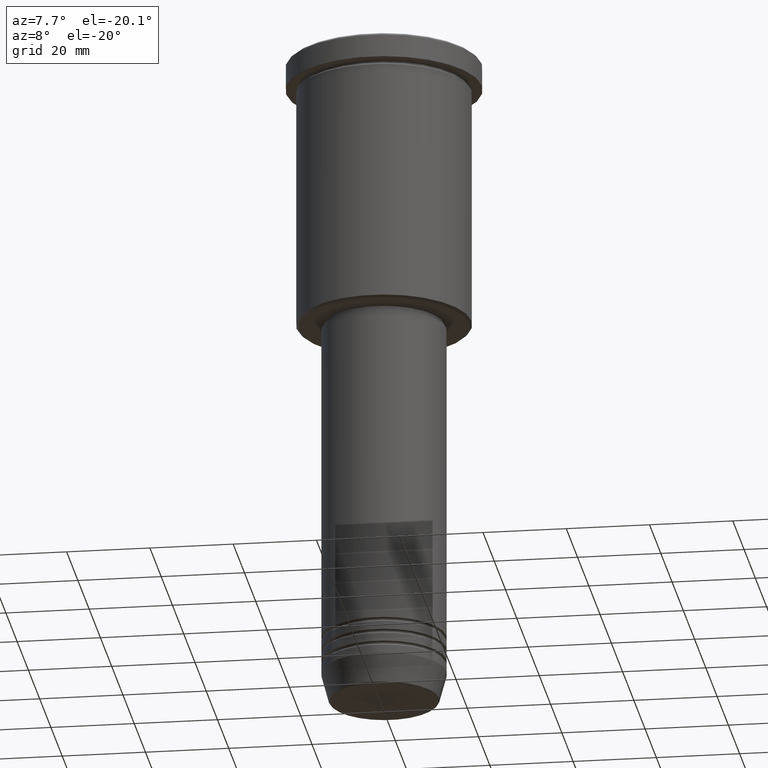
[diagram: clean part render]
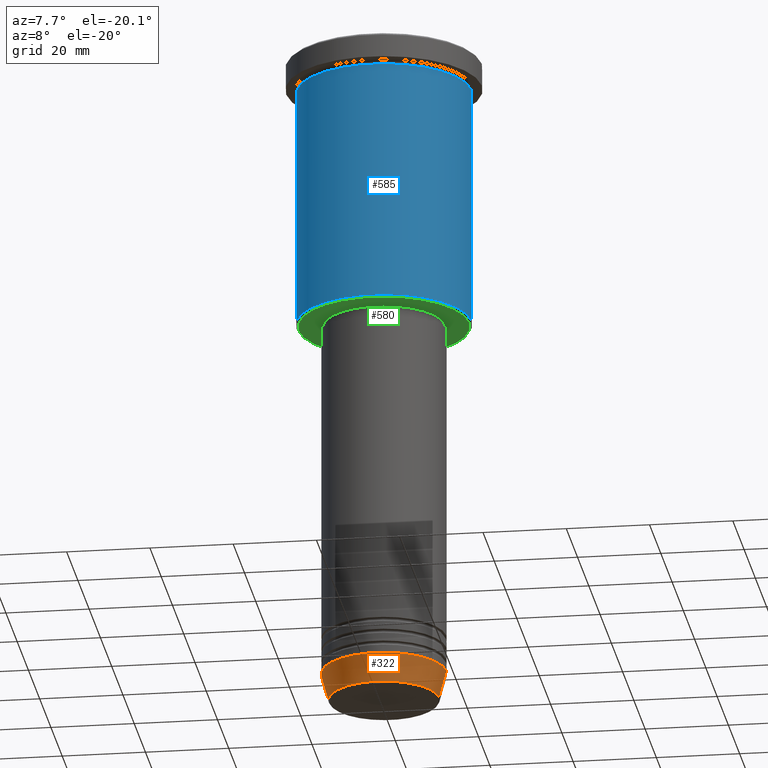
[diagram: same view with three faces highlighted in distinct colors, each labeled with its STEP entity id]
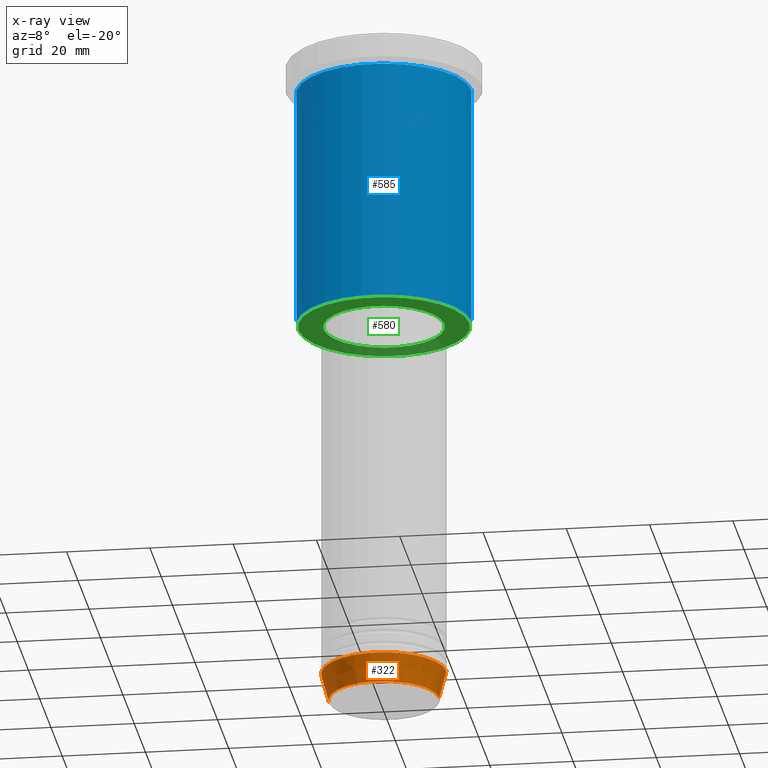
[diagram: x-ray of the same camera — body ghosted, the three highlighted faces saturated]
A machine part, auxiliary view with three faces highlighted in distinct colors.
The next image is the same camera in x-ray (body ghosted, the three faces saturated) — at least one of them is partly hidden behind the body in this view.
Their STEP definitions:

[orange] entity #322 — the highlighted conical surface has half-angle 15 deg.
#81 = DIRECTION ( 'NONE',  ( 1.000000000000000000, 0.000000000000000000, 0.000000000000000000 ) ) ;
#106 = CARTESIAN_POINT ( 'NONE',  ( 13.22365507213719305, 0.000000000000000000, -160.6294095225512137 ) ) ;
#151 = DIRECTION ( 'NONE',  ( 1.000000000000000000, 0.000000000000000000, 0.000000000000000000 ) ) ;
#196 = DIRECTION ( 'NONE',  ( -0.2588190451025213501, 3.169619151431772337E-17, 0.9659258262890680902 ) ) ;
#220 = CARTESIAN_POINT ( 'NONE',  ( -13.22365507213719305, 1.728200442216588583E-15, -160.6294095225512137 ) ) ;
#221 = EDGE_CURVE ( 'NONE', #563, #750, #778, .T. ) ;
#238 = ORIENTED_EDGE ( 'NONE', *, *, #372, .T. ) ;
#243 = EDGE_LOOP ( 'NONE', ( #439, #238, #813, #896 ) ) ;
#317 = CARTESIAN_POINT ( 'NONE',  ( -15.00000000000000000, 1.836970198721029589E-15, -154.0000000000000000 ) ) ;
#322 = ADVANCED_FACE ( 'NONE', ( #618 ), #770, .T. ) ;
#372 = EDGE_CURVE ( 'NONE', #1168, #563, #985, .T. ) ;
#377 = AXIS2_PLACEMENT_3D ( 'NONE', #819, #539, #151 ) ;
#428 = CARTESIAN_POINT ( 'NONE',  ( 15.00000000000000000, 0.000000000000000000, -154.0000000000000000 ) ) ;
#439 = ORIENTED_EDGE ( 'NONE', *, *, #881, .F. ) ;
#474 = LINE ( 'NONE', #853, #1032 ) ;
#484 = DIRECTION ( 'NONE',  ( -0.000000000000000000, -0.000000000000000000, 1.000000000000000000 ) ) ;
#495 = DIRECTION ( 'NONE',  ( 1.000000000000000000, 0.000000000000000000, 0.000000000000000000 ) ) ;
#509 = AXIS2_PLACEMENT_3D ( 'NONE', #1154, #717, #81 ) ;
#539 = DIRECTION ( 'NONE',  ( -0.000000000000000000, -0.000000000000000000, 1.000000000000000000 ) ) ;
#563 = VERTEX_POINT ( 'NONE', #106 ) ;
#577 = VECTOR ( 'NONE', #1029, 1000.000000000000000 ) ;
#618 = FACE_OUTER_BOUND ( 'NONE', #243, .T. ) ;
#692 = CIRCLE ( 'NONE', #1124, 15.00000000000000000 ) ;
#717 = DIRECTION ( 'NONE',  ( -0.000000000000000000, -0.000000000000000000, 1.000000000000000000 ) ) ;
#750 = VERTEX_POINT ( 'NONE', #428 ) ;
#770 = CONICAL_SURFACE ( 'NONE', #377, 15.00000000000000000, 0.2617993877991500740 ) ;
#778 = LINE ( 'NONE', #1145, #577 ) ;
#813 = ORIENTED_EDGE ( 'NONE', *, *, #221, .T. ) ;
#819 = CARTESIAN_POINT ( 'NONE',  ( 0.000000000000000000, 0.000000000000000000, -154.0000000000000000 ) ) ;
#853 = CARTESIAN_POINT ( 'NONE',  ( -15.00000000000000000, 1.836970198721029589E-15, -154.0000000000000000 ) ) ;
#881 = EDGE_CURVE ( 'NONE', #1168, #1134, #474, .T. ) ;
#896 = ORIENTED_EDGE ( 'NONE', *, *, #1040, .F. ) ;
#960 = CARTESIAN_POINT ( 'NONE',  ( 0.000000000000000000, 0.000000000000000000, -154.0000000000000000 ) ) ;
#985 = CIRCLE ( 'NONE', #509, 13.22365507213719305 ) ;
#1029 = DIRECTION ( 'NONE',  ( 0.2588190451025213501, 0.000000000000000000, 0.9659258262890680902 ) ) ;
#1032 = VECTOR ( 'NONE', #196, 1000.000000000000000 ) ;
#1040 = EDGE_CURVE ( 'NONE', #1134, #750, #692, .T. ) ;
#1124 = AXIS2_PLACEMENT_3D ( 'NONE', #960, #484, #495 ) ;
#1134 = VERTEX_POINT ( 'NONE', #317 ) ;
#1145 = CARTESIAN_POINT ( 'NONE',  ( 15.00000000000000000, 0.000000000000000000, -154.0000000000000000 ) ) ;
#1154 = CARTESIAN_POINT ( 'NONE',  ( 0.000000000000000000, 0.000000000000000000, -160.6294095225512137 ) ) ;
#1168 = VERTEX_POINT ( 'NONE', #220 ) ;

[blue] entity #585 — the highlighted cylindrical surface (partial cylindrical patch) has radius 21 mm, axis along (-0, -0, 1).
#13 = AXIS2_PLACEMENT_3D ( 'NONE', #300, #672, #854 ) ;
#28 = VERTEX_POINT ( 'NONE', #149 ) ;
#44 = DIRECTION ( 'NONE',  ( -0.000000000000000000, -0.000000000000000000, 1.000000000000000000 ) ) ;
#68 = ORIENTED_EDGE ( 'NONE', *, *, #88, .T. ) ;
#71 = LINE ( 'NONE', #737, #252 ) ;
#88 = EDGE_CURVE ( 'NONE', #514, #406, #559, .T. ) ;
#103 = ORIENTED_EDGE ( 'NONE', *, *, #339, .F. ) ;
#149 = CARTESIAN_POINT ( 'NONE',  ( -21.00000000000000000, 2.571758278209441661E-15, -6.999999999999994671 ) ) ;
#187 = CARTESIAN_POINT ( 'NONE',  ( -21.00000000000000000, 2.571758278209441661E-15, -65.49999999999998579 ) ) ;
#203 = ORIENTED_EDGE ( 'NONE', *, *, #603, .T. ) ;
#218 = LINE ( 'NONE', #969, #788 ) ;
#233 = AXIS2_PLACEMENT_3D ( 'NONE', #913, #443, #531 ) ;
#252 = VECTOR ( 'NONE', #1082, 1000.000000000000000 ) ;
#300 = CARTESIAN_POINT ( 'NONE',  ( 0.000000000000000000, 0.000000000000000000, -65.49999999999998579 ) ) ;
#339 = EDGE_CURVE ( 'NONE', #28, #494, #451, .T. ) ;
#392 = AXIS2_PLACEMENT_3D ( 'NONE', #874, #44, #776 ) ;
#406 = VERTEX_POINT ( 'NONE', #650 ) ;
#443 = DIRECTION ( 'NONE',  ( -0.000000000000000000, -0.000000000000000000, 1.000000000000000000 ) ) ;
#451 = CIRCLE ( 'NONE', #233, 21.00000000000000000 ) ;
#486 = CARTESIAN_POINT ( 'NONE',  ( 21.00000000000000000, 0.000000000000000000, -6.999999999999994671 ) ) ;
#494 = VERTEX_POINT ( 'NONE', #486 ) ;
#514 = VERTEX_POINT ( 'NONE', #187 ) ;
#531 = DIRECTION ( 'NONE',  ( 1.000000000000000000, 0.000000000000000000, 0.000000000000000000 ) ) ;
#546 = ORIENTED_EDGE ( 'NONE', *, *, #765, .F. ) ;
#559 = CIRCLE ( 'NONE', #13, 21.00000000000000000 ) ;
#585 = ADVANCED_FACE ( 'NONE', ( #879 ), #1118, .T. ) ;
#603 = EDGE_CURVE ( 'NONE', #406, #494, #218, .T. ) ;
#650 = CARTESIAN_POINT ( 'NONE',  ( 21.00000000000000000, 0.000000000000000000, -65.49999999999998579 ) ) ;
#672 = DIRECTION ( 'NONE',  ( -0.000000000000000000, -0.000000000000000000, 1.000000000000000000 ) ) ;
#737 = CARTESIAN_POINT ( 'NONE',  ( -21.00000000000000000, 2.571758278209441661E-15, 0.000000000000000000 ) ) ;
#765 = EDGE_CURVE ( 'NONE', #514, #28, #71, .T. ) ;
#776 = DIRECTION ( 'NONE',  ( 1.000000000000000000, 0.000000000000000000, 0.000000000000000000 ) ) ;
#784 = DIRECTION ( 'NONE',  ( -0.000000000000000000, -0.000000000000000000, 1.000000000000000000 ) ) ;
#788 = VECTOR ( 'NONE', #784, 1000.000000000000000 ) ;
#854 = DIRECTION ( 'NONE',  ( -1.000000000000000000, 0.000000000000000000, 0.000000000000000000 ) ) ;
#874 = CARTESIAN_POINT ( 'NONE',  ( 0.000000000000000000, 0.000000000000000000, 0.000000000000000000 ) ) ;
#879 = FACE_OUTER_BOUND ( 'NONE', #1052, .T. ) ;
#913 = CARTESIAN_POINT ( 'NONE',  ( 0.000000000000000000, 0.000000000000000000, -6.999999999999994671 ) ) ;
#969 = CARTESIAN_POINT ( 'NONE',  ( 21.00000000000000000, 0.000000000000000000, 0.000000000000000000 ) ) ;
#1052 = EDGE_LOOP ( 'NONE', ( #546, #68, #203, #103 ) ) ;
#1082 = DIRECTION ( 'NONE',  ( -0.000000000000000000, -0.000000000000000000, 1.000000000000000000 ) ) ;
#1118 = CYLINDRICAL_SURFACE ( 'NONE', #392, 21.00000000000000000 ) ;

[green] entity #580 — the highlighted planar face has unit normal (0, 0, -1).
#33 = CARTESIAN_POINT ( 'NONE',  ( 14.49999999999999822, 0.000000000000000000, -65.99999999999998579 ) ) ;
#42 = CARTESIAN_POINT ( 'NONE',  ( -14.49999999999999822, 1.775737858763662015E-15, -65.99999999999998579 ) ) ;
#49 = VERTEX_POINT ( 'NONE', #515 ) ;
#78 = DIRECTION ( 'NONE',  ( 1.000000000000000000, 0.000000000000000000, 0.000000000000000000 ) ) ;
#113 = CIRCLE ( 'NONE', #707, 14.49999999999999822 ) ;
#117 = FACE_BOUND ( 'NONE', #1047, .T. ) ;
#133 = FACE_OUTER_BOUND ( 'NONE', #234, .T. ) ;
#142 = ORIENTED_EDGE ( 'NONE', *, *, #401, .T. ) ;
#161 = AXIS2_PLACEMENT_3D ( 'NONE', #508, #1139, #319 ) ;
#180 = DIRECTION ( 'NONE',  ( -1.000000000000000000, 0.000000000000000000, 0.000000000000000000 ) ) ;
#189 = EDGE_CURVE ( 'NONE', #1056, #651, #113, .T. ) ;
#234 = EDGE_LOOP ( 'NONE', ( #299, #142 ) ) ;
#271 = CARTESIAN_POINT ( 'NONE',  ( 0.000000000000000000, 0.000000000000000000, -65.99999999999998579 ) ) ;
#299 = ORIENTED_EDGE ( 'NONE', *, *, #996, .T. ) ;
#319 = DIRECTION ( 'NONE',  ( -1.000000000000000000, 0.000000000000000000, -0.000000000000000000 ) ) ;
#334 = AXIS2_PLACEMENT_3D ( 'NONE', #724, #360, #647 ) ;
#360 = DIRECTION ( 'NONE',  ( 0.000000000000000000, 0.000000000000000000, -1.000000000000000000 ) ) ;
#379 = CARTESIAN_POINT ( 'NONE',  ( -20.50000000000000355, 2.541142108230758269E-15, -65.99999999999998579 ) ) ;
#385 = ORIENTED_EDGE ( 'NONE', *, *, #189, .T. ) ;
#401 = EDGE_CURVE ( 'NONE', #959, #49, #1039, .T. ) ;
#410 = PLANE ( 'NONE',  #161 ) ;
#508 = CARTESIAN_POINT ( 'NONE',  ( 0.000000000000000000, 21.00000000000000000, -65.99999999999998579 ) ) ;
#510 = EDGE_CURVE ( 'NONE', #651, #1056, #637, .T. ) ;
#515 = CARTESIAN_POINT ( 'NONE',  ( 20.50000000000000355, 0.000000000000000000, -65.99999999999998579 ) ) ;
#523 = CIRCLE ( 'NONE', #571, 20.50000000000000355 ) ;
#532 = AXIS2_PLACEMENT_3D ( 'NONE', #271, #867, #581 ) ;
#571 = AXIS2_PLACEMENT_3D ( 'NONE', #741, #1092, #180 ) ;
#580 = ADVANCED_FACE ( 'NONE', ( #133, #117 ), #410, .T. ) ;
#581 = DIRECTION ( 'NONE',  ( 1.000000000000000000, 0.000000000000000000, 0.000000000000000000 ) ) ;
#637 = CIRCLE ( 'NONE', #532, 14.49999999999999822 ) ;
#647 = DIRECTION ( 'NONE',  ( -1.000000000000000000, 0.000000000000000000, 0.000000000000000000 ) ) ;
#651 = VERTEX_POINT ( 'NONE', #33 ) ;
#707 = AXIS2_PLACEMENT_3D ( 'NONE', #911, #1090, #78 ) ;
#724 = CARTESIAN_POINT ( 'NONE',  ( 0.000000000000000000, 0.000000000000000000, -65.99999999999998579 ) ) ;
#741 = CARTESIAN_POINT ( 'NONE',  ( 0.000000000000000000, 0.000000000000000000, -65.99999999999998579 ) ) ;
#867 = DIRECTION ( 'NONE',  ( -0.000000000000000000, -0.000000000000000000, 1.000000000000000000 ) ) ;
#911 = CARTESIAN_POINT ( 'NONE',  ( 0.000000000000000000, 0.000000000000000000, -65.99999999999998579 ) ) ;
#959 = VERTEX_POINT ( 'NONE', #379 ) ;
#996 = EDGE_CURVE ( 'NONE', #49, #959, #523, .T. ) ;
#1039 = CIRCLE ( 'NONE', #334, 20.50000000000000355 ) ;
#1047 = EDGE_LOOP ( 'NONE', ( #1141, #385 ) ) ;
#1056 = VERTEX_POINT ( 'NONE', #42 ) ;
#1090 = DIRECTION ( 'NONE',  ( -0.000000000000000000, -0.000000000000000000, 1.000000000000000000 ) ) ;
#1092 = DIRECTION ( 'NONE',  ( 0.000000000000000000, 0.000000000000000000, -1.000000000000000000 ) ) ;
#1139 = DIRECTION ( 'NONE',  ( 0.000000000000000000, 0.000000000000000000, -1.000000000000000000 ) ) ;
#1141 = ORIENTED_EDGE ( 'NONE', *, *, #510, .T. ) ;